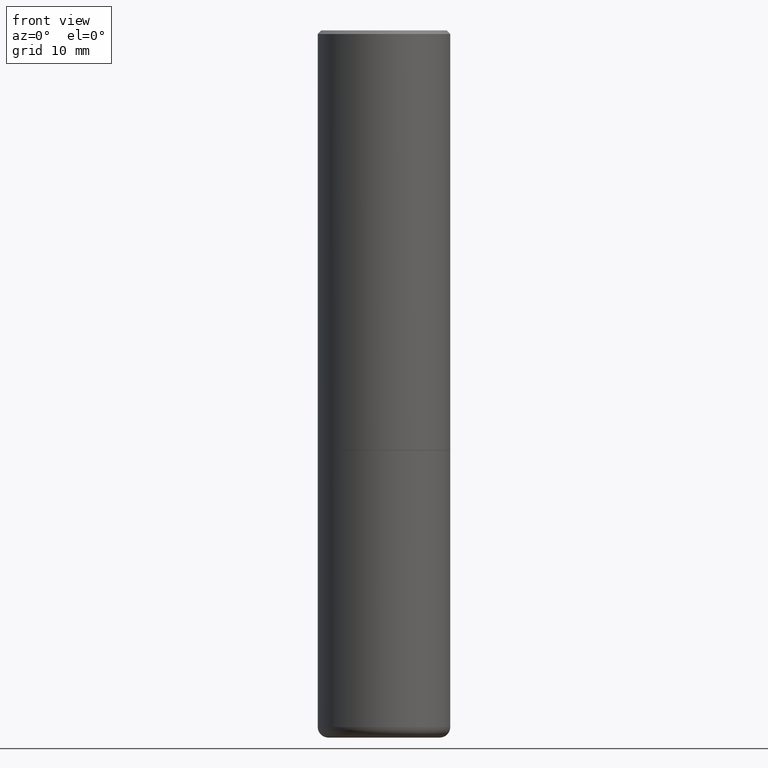
[diagram: clean part render]
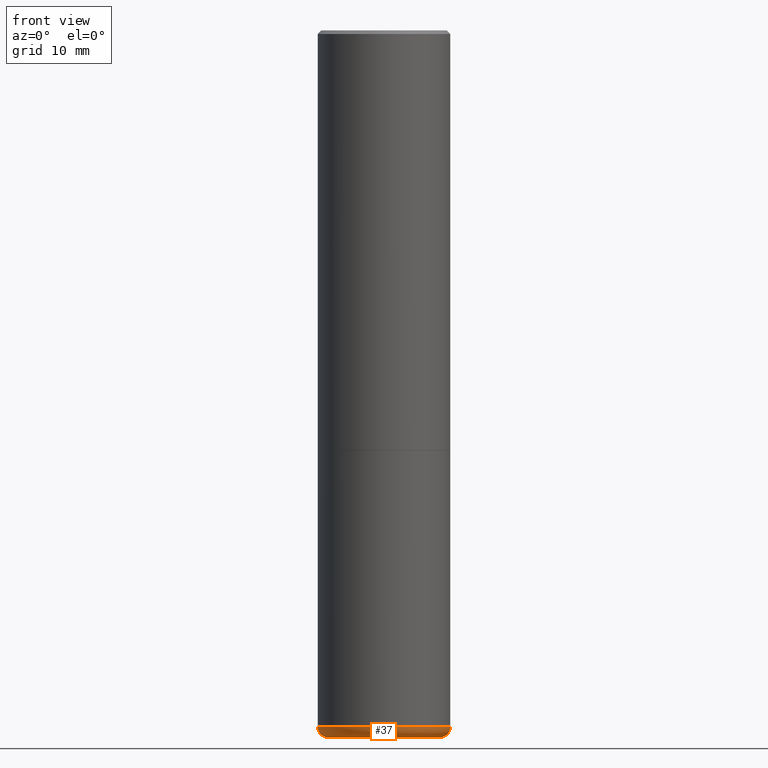
[diagram: same view with one face highlighted and labeled with its STEP entity id]
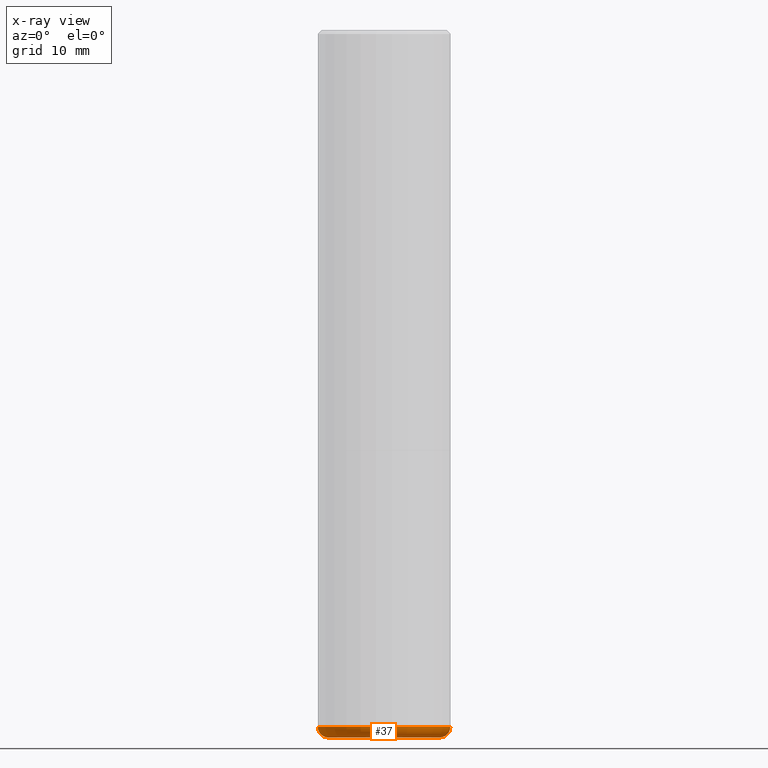
[diagram: x-ray of the same camera — body ghosted, the highlighted face saturated]
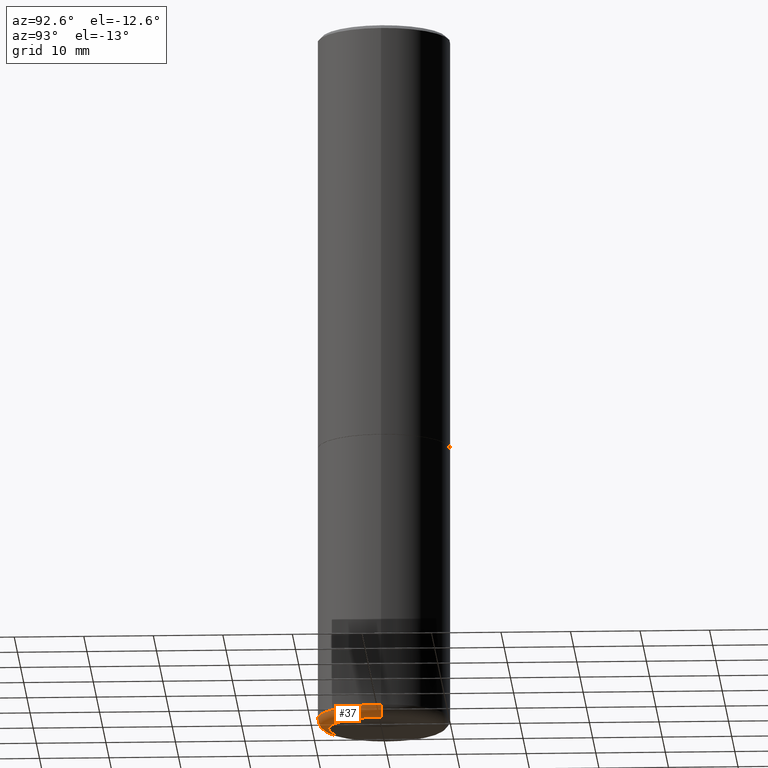
[diagram: same view with one face highlighted and labeled with its STEP entity id]
A machine part, front view. The second image highlights one B-rep face of the part: STEP entity #37.
The next image is the same camera in x-ray: the body ghosted, the highlighted face saturated — about 0% of this face is hidden behind the body in this view.
A second angle (auxiliary view) of the same face is appended — the face is thin or edge-on in the first view.
In plain terms, the highlighted toroidal blend (fillet) surface has major radius 8.001 mm and minor (blend) radius 1.524 mm.
Its self-contained STEP definition (entity closure, byte-faithful):
#4 = CARTESIAN_POINT ( 'NONE',  ( 0.3139528556137644033, -1.611976638653431424E-14, -3.999990861709384227 ) ) ;
#12 = CARTESIAN_POINT ( 'NONE',  ( 0.3150000000000000577, -1.595606971851316740E-14, -3.939999999999999947 ) ) ;
#17 = CARTESIAN_POINT ( 'NONE',  ( -0.3150000000000000577, -1.151822685739767881E-14, -3.939999999999999947 ) ) ;
#27 = AXIS2_PLACEMENT_3D ( 'NONE', #165, #52, #85 ) ;
#37 = ADVANCED_FACE ( 'NONE', ( #396 ), #218, .T. ) ;
#47 = DIRECTION ( 'NONE',  ( -6.982962677686266711E-15, -1.000000000000000000, 3.491481338843145583E-15 ) ) ;
#52 = DIRECTION ( 'NONE',  ( -2.445468806185136597E-29, 3.491481338843145583E-15, 1.000000000000000000 ) ) ;
#58 = EDGE_CURVE ( 'NONE', #385, #327, #91, .T. ) ;
#67 = DIRECTION ( 'NONE',  ( 1.000000000000000000, -6.982962677686265133E-15, 0.000000000000000000 ) ) ;
#84 = CARTESIAN_POINT ( 'NONE',  ( 9.635147096369438236E-29, -1.375643647504199401E-14, -3.939999999999999947 ) ) ;
#85 = DIRECTION ( 'NONE',  ( 1.000000000000000000, -6.982962677686266711E-15, 4.883557194083113462E-29 ) ) ;
#90 = ORIENTED_EDGE ( 'NONE', *, *, #58, .T. ) ;
#91 = CIRCLE ( 'NONE', #435, 0.06000000000000031697 ) ;
#95 = EDGE_CURVE ( 'NONE', #163, #167, #142, .T. ) ;
#105 = DIRECTION ( 'NONE',  ( -2.445468806185136597E-29, 3.491481338843145583E-15, 1.000000000000000000 ) ) ;
#110 = CARTESIAN_POINT ( 'NONE',  ( 0.3750000000000003886, -1.637504747917434719E-14, -3.939999999999999947 ) ) ;
#111 = ORIENTED_EDGE ( 'NONE', *, *, #95, .F. ) ;
#122 = DIRECTION ( 'NONE',  ( 1.000000000000000000, -6.982962677686265922E-15, 0.000000000000000000 ) ) ;
#126 = DIRECTION ( 'NONE',  ( 7.105427357601001859E-15, 1.000000000000000000, -3.491481338843145583E-15 ) ) ;
#128 = DIRECTION ( 'NONE',  ( 1.000000000000000000, -6.982962677686263555E-15, 0.000000000000000000 ) ) ;
#142 = CIRCLE ( 'NONE', #285, 0.06000000000000031697 ) ;
#163 = VERTEX_POINT ( 'NONE', #245 ) ;
#165 = CARTESIAN_POINT ( 'NONE',  ( 9.635147096369438236E-29, -1.375643647504199401E-14, -3.939999999999999947 ) ) ;
#167 = VERTEX_POINT ( 'NONE', #210 ) ;
#201 = CIRCLE ( 'NONE', #440, 0.3750000000000003886 ) ;
#204 = CIRCLE ( 'NONE', #280, 0.3139528556137635151 ) ;
#206 = CARTESIAN_POINT ( 'NONE',  ( 9.781852877335904150E-29, -1.396589344920142703E-14, -3.999990861709384227 ) ) ;
#210 = CARTESIAN_POINT ( 'NONE',  ( -0.3750000000000003886, -1.109190121594161516E-14, -3.939999999999999947 ) ) ;
#213 = EDGE_CURVE ( 'NONE', #163, #385, #204, .T. ) ;
#218 = TOROIDAL_SURFACE ( 'NONE', #27, 0.3150000000000000577, 0.06000000000000029615 ) ;
#245 = CARTESIAN_POINT ( 'NONE',  ( -0.3139528556137644033, -1.177357237589748675E-14, -3.999990861709384227 ) ) ;
#273 = DIRECTION ( 'NONE',  ( -2.445468806185136597E-29, 3.491481338843145583E-15, 1.000000000000000000 ) ) ;
#275 = ORIENTED_EDGE ( 'NONE', *, *, #213, .T. ) ;
#276 = ORIENTED_EDGE ( 'NONE', *, *, #405, .F. ) ;
#280 = AXIS2_PLACEMENT_3D ( 'NONE', #206, #105, #67 ) ;
#285 = AXIS2_PLACEMENT_3D ( 'NONE', #17, #126, #369 ) ;
#327 = VERTEX_POINT ( 'NONE', #110 ) ;
#369 = DIRECTION ( 'NONE',  ( -1.000000000000000000, 7.105427357600985293E-15, 0.000000000000000000 ) ) ;
#372 = EDGE_LOOP ( 'NONE', ( #111, #275, #90, #276 ) ) ;
#385 = VERTEX_POINT ( 'NONE', #4 ) ;
#396 = FACE_OUTER_BOUND ( 'NONE', #372, .T. ) ;
#405 = EDGE_CURVE ( 'NONE', #167, #327, #201, .T. ) ;
#435 = AXIS2_PLACEMENT_3D ( 'NONE', #12, #47, #128 ) ;
#440 = AXIS2_PLACEMENT_3D ( 'NONE', #84, #273, #122 ) ;